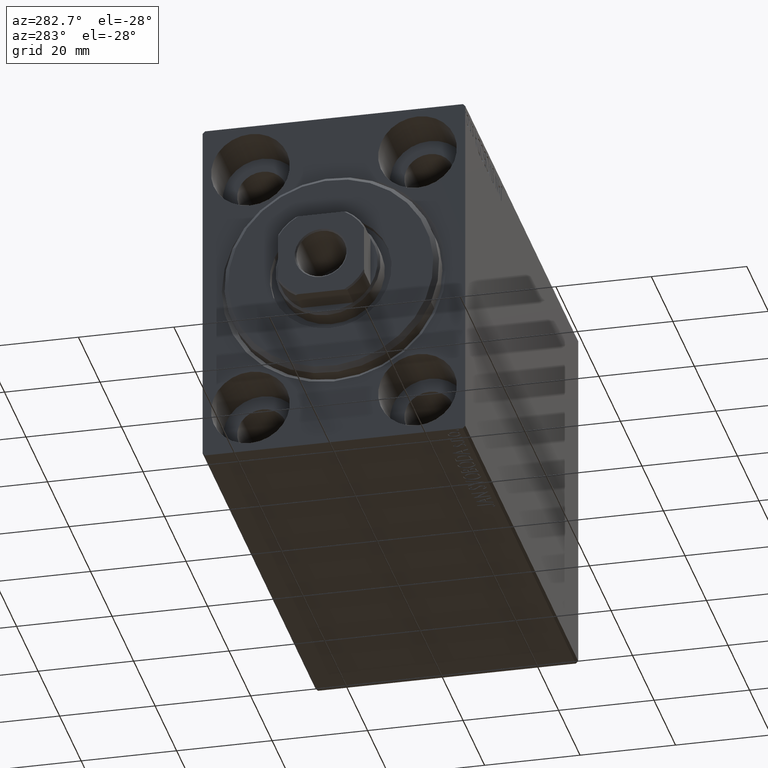
[diagram: clean part render]
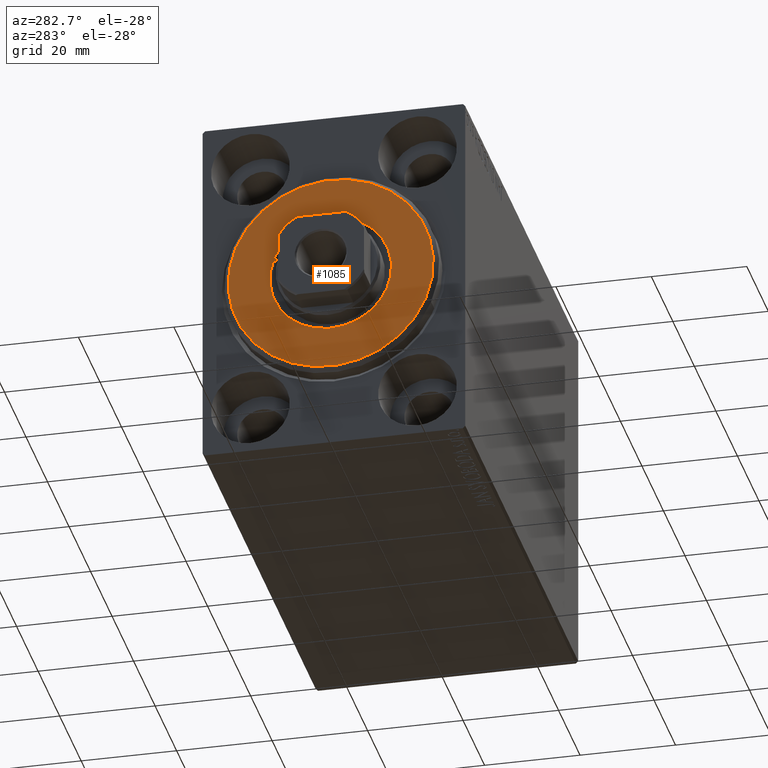
[diagram: same view with one face highlighted and labeled with its STEP entity id]
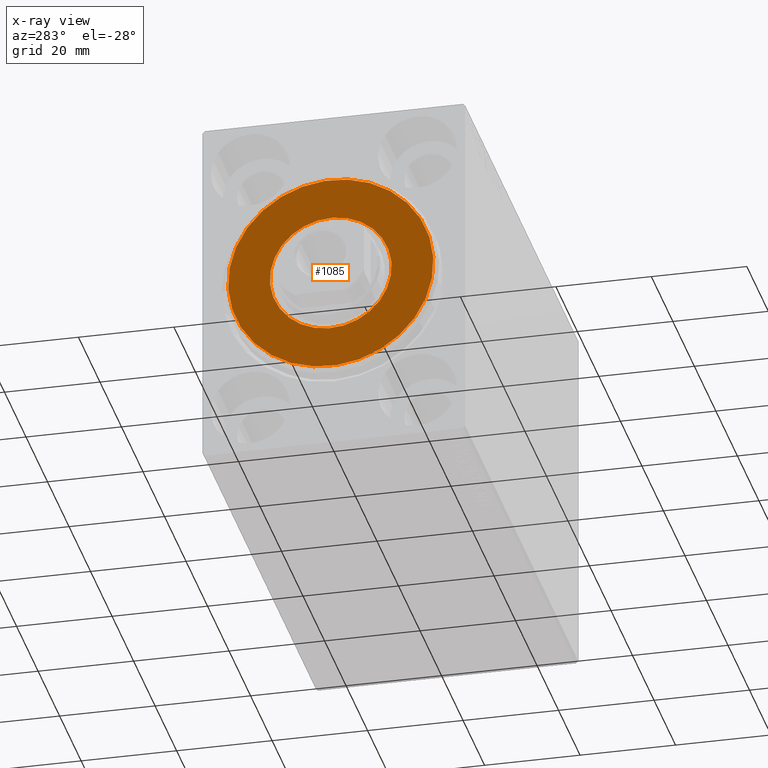
[diagram: x-ray of the same camera — body ghosted, the highlighted face saturated]
A machine part, auxiliary view. The second image highlights one B-rep face of the part: STEP entity #1085.
The next image is the same camera in x-ray: the body ghosted, the highlighted face saturated — about 0% of this face is hidden behind the body in this view.
In plain terms, the highlighted planar face has unit normal (-1, 0, 0).
Its self-contained STEP definition (entity closure, byte-faithful):
#688 = DIRECTION ( 'NONE',  ( -1.000000000000000000, 0.000000000000000000, -0.000000000000000000 ) ) ;
#1085 = ADVANCED_FACE ( 'NONE', ( #24801, #21489 ), #34925, .T. ) ;
#1124 = CARTESIAN_POINT ( 'NONE',  ( 3.000000000000000000, 0.000000000000000000, 0.000000000000000000 ) ) ;
#1183 = ORIENTED_EDGE ( 'NONE', *, *, #5771, .T. ) ;
#1220 = CARTESIAN_POINT ( 'NONE',  ( 3.000000000000000000, 0.000000000000000000, 0.000000000000000000 ) ) ;
#3648 = ORIENTED_EDGE ( 'NONE', *, *, #41437, .T. ) ;
#4763 = DIRECTION ( 'NONE',  ( 1.000000000000000000, -0.000000000000000000, 0.000000000000000000 ) ) ;
#5096 = EDGE_CURVE ( 'NONE', #29109, #24557, #19948, .T. ) ;
#5179 = AXIS2_PLACEMENT_3D ( 'NONE', #23485, #36279, #29448 ) ;
#5664 = EDGE_LOOP ( 'NONE', ( #35402, #1183 ) ) ;
#5771 = EDGE_CURVE ( 'NONE', #40504, #32348, #39681, .T. ) ;
#6403 = AXIS2_PLACEMENT_3D ( 'NONE', #24398, #4763, #27706 ) ;
#7894 = EDGE_LOOP ( 'NONE', ( #17821, #3648 ) ) ;
#10341 = CARTESIAN_POINT ( 'NONE',  ( 3.000000000000000000, 0.000000000000000000, 12.75000000000000000 ) ) ;
#12913 = AXIS2_PLACEMENT_3D ( 'NONE', #42555, #18753, #32189 ) ;
#14098 = DIRECTION ( 'NONE',  ( 0.000000000000000000, 0.000000000000000000, -1.000000000000000000 ) ) ;
#17821 = ORIENTED_EDGE ( 'NONE', *, *, #5096, .T. ) ;
#18398 = DIRECTION ( 'NONE',  ( 1.000000000000000000, -0.000000000000000000, 0.000000000000000000 ) ) ;
#18753 = DIRECTION ( 'NONE',  ( -1.000000000000000000, 0.000000000000000000, -0.000000000000000000 ) ) ;
#19602 = CARTESIAN_POINT ( 'NONE',  ( 3.000000000000000000, 2.694222958124177598E-15, -21.50000000000000355 ) ) ;
#19743 = CIRCLE ( 'NONE', #33104, 12.75000000000000000 ) ;
#19948 = CIRCLE ( 'NONE', #12913, 12.75000000000000000 ) ;
#21489 = FACE_BOUND ( 'NONE', #7894, .T. ) ;
#22606 = AXIS2_PLACEMENT_3D ( 'NONE', #1220, #18398, #37590 ) ;
#23485 = CARTESIAN_POINT ( 'NONE',  ( 3.000000000000000000, 0.000000000000000000, 0.000000000000000000 ) ) ;
#24398 = CARTESIAN_POINT ( 'NONE',  ( 3.000000000000000000, 0.000000000000000000, 0.000000000000000000 ) ) ;
#24557 = VERTEX_POINT ( 'NONE', #38224 ) ;
#24801 = FACE_OUTER_BOUND ( 'NONE', #5664, .T. ) ;
#27706 = DIRECTION ( 'NONE',  ( 0.000000000000000000, 0.000000000000000000, -1.000000000000000000 ) ) ;
#29109 = VERTEX_POINT ( 'NONE', #10341 ) ;
#29448 = DIRECTION ( 'NONE',  ( 0.000000000000000000, 0.000000000000000000, -1.000000000000000000 ) ) ;
#31031 = CIRCLE ( 'NONE', #6403, 21.50000000000000355 ) ;
#32189 = DIRECTION ( 'NONE',  ( 0.000000000000000000, 0.000000000000000000, -1.000000000000000000 ) ) ;
#32348 = VERTEX_POINT ( 'NONE', #41681 ) ;
#33104 = AXIS2_PLACEMENT_3D ( 'NONE', #1124, #688, #14098 ) ;
#34925 = PLANE ( 'NONE',  #22606 ) ;
#35402 = ORIENTED_EDGE ( 'NONE', *, *, #35844, .T. ) ;
#35844 = EDGE_CURVE ( 'NONE', #32348, #40504, #31031, .T. ) ;
#36279 = DIRECTION ( 'NONE',  ( 1.000000000000000000, -0.000000000000000000, 0.000000000000000000 ) ) ;
#37590 = DIRECTION ( 'NONE',  ( 0.000000000000000000, 0.000000000000000000, -1.000000000000000000 ) ) ;
#38224 = CARTESIAN_POINT ( 'NONE',  ( 3.000000000000000000, 1.561424668912874914E-15, -12.75000000000000000 ) ) ;
#39681 = CIRCLE ( 'NONE', #5179, 21.50000000000000355 ) ;
#40504 = VERTEX_POINT ( 'NONE', #19602 ) ;
#41437 = EDGE_CURVE ( 'NONE', #24557, #29109, #19743, .T. ) ;
#41681 = CARTESIAN_POINT ( 'NONE',  ( 3.000000000000000000, 0.000000000000000000, 21.50000000000000355 ) ) ;
#42555 = CARTESIAN_POINT ( 'NONE',  ( 3.000000000000000000, 0.000000000000000000, 0.000000000000000000 ) ) ;